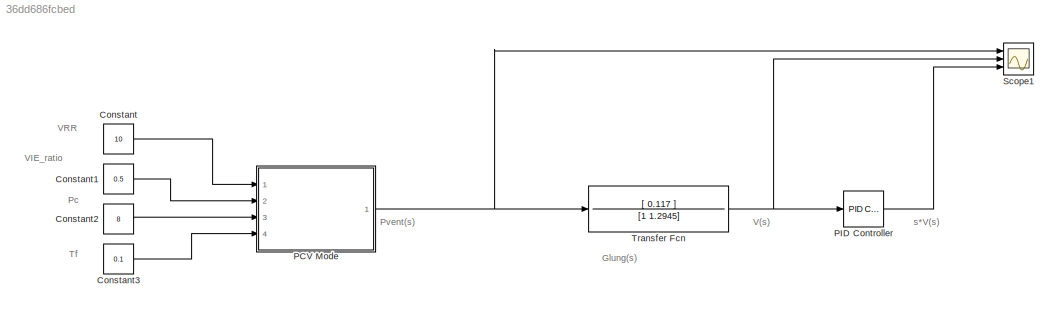
MODEL slx_36dd686fcbed
KIND model
CONFIG AbsTol = auto
CONFIG EnableMultiTasking = on
CONFIG FixedStep = 0.01
CONFIG MaxStep = auto
CONFIG MinStep = auto
CONFIG RelTol = 1e-3
CONFIG SampleTimeConstraint = Unconstrained
CONFIG Solver = ode1
CONFIG SolverName = ode1
CONFIG StartTime = 0.0
CONFIG StopTime = 60
BLOCK [Constant] Constant
  Value = 10
  VectorParams1D = off
BLOCK [Constant] Constant1
  Value = 0.5
BLOCK [Constant] Constant2
  Value = 8
BLOCK [Constant] Constant3
  Value = 0.1
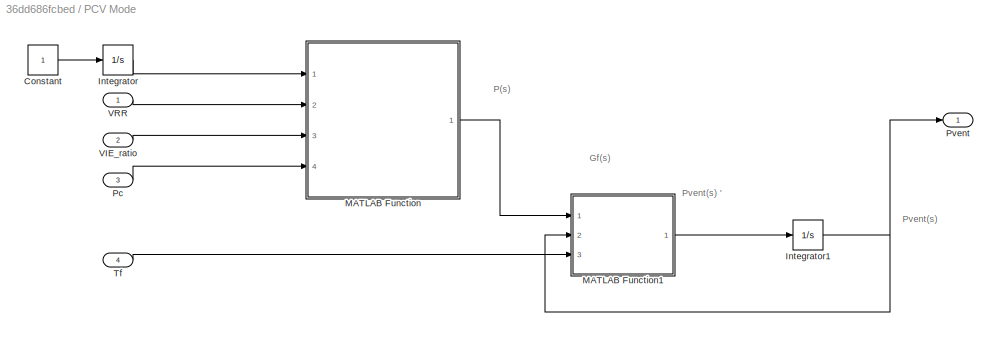
BLOCK [SubSystem] PCV Mode
  Ports = [4, 1]
  RequestExecContextInheritance = off
BLOCK [Constant] PCV Mode/Constant
BLOCK [Integrator] PCV Mode/Integrator
  Ports = [1, 1]
BLOCK [Integrator] PCV Mode/Integrator1
  Ports = [1, 1]
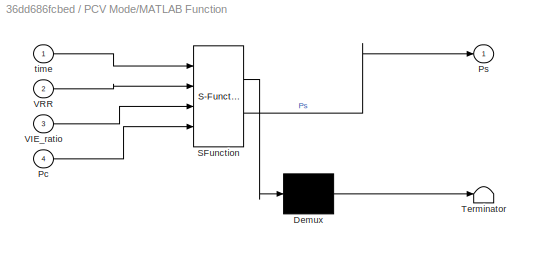
BLOCK [SubSystem] PCV Mode/MATLAB Function
  ErrorFcn = Stateflow.Translate.translate
  PermitHierarchicalResolution = ExplicitOnly
  Ports = [4, 1]
  RequestExecContextInheritance = off
  SFBlockType = MATLAB Function
  TreatAsAtomicUnit = on
BLOCK [Demux] PCV Mode/MATLAB Function/ Demux 
  DisplayOption = bar
  Outputs = 1
  Ports = [1, 1]
BLOCK [S-Function] PCV Mode/MATLAB Function/ SFunction 
  EnableBusSupport = on
  FunctionName = sf_sfun
  PortCounts = [4 2]
  Ports = [4, 2]
  SFcnIsStateOwnerBlock = off
  SFunctionDeploymentMode = off
  Tag = Stateflow S-Function Final_Q2_E_for_Pc_8_end 2
BLOCK [Terminator] PCV Mode/MATLAB Function/ Terminator 
BLOCK [Inport] PCV Mode/MATLAB Function/Pc
  IconDisplay = Port number
  Port = 4
BLOCK [Outport] PCV Mode/MATLAB Function/Ps
  IconDisplay = Port number
  VectorParamsAs1DForOutWhenUnconnected = on
BLOCK [Inport] PCV Mode/MATLAB Function/VIE_ratio
  IconDisplay = Port number
  Port = 3
BLOCK [Inport] PCV Mode/MATLAB Function/VRR
  IconDisplay = Port number
  Port = 2
BLOCK [Inport] PCV Mode/MATLAB Function/time
  IconDisplay = Port number
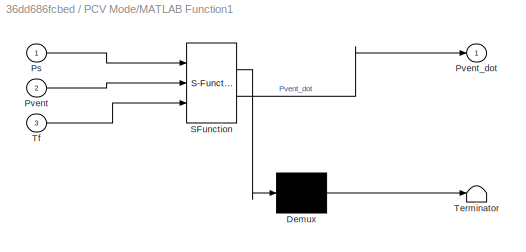
BLOCK [SubSystem] PCV Mode/MATLAB Function1
  ErrorFcn = Stateflow.Translate.translate
  PermitHierarchicalResolution = ExplicitOnly
  Ports = [3, 1]
  RequestExecContextInheritance = off
  SFBlockType = MATLAB Function
  TreatAsAtomicUnit = on
BLOCK [Demux] PCV Mode/MATLAB Function1/ Demux 
  DisplayOption = bar
  Outputs = 1
  Ports = [1, 1]
BLOCK [S-Function] PCV Mode/MATLAB Function1/ SFunction 
  EnableBusSupport = on
  FunctionName = sf_sfun
  PortCounts = [3 2]
  Ports = [3, 2]
  SFcnIsStateOwnerBlock = off
  SFunctionDeploymentMode = off
  Tag = Stateflow S-Function Final_Q2_E_for_Pc_8_end 4
BLOCK [Terminator] PCV Mode/MATLAB Function1/ Terminator 
BLOCK [Inport] PCV Mode/MATLAB Function1/Ps
  IconDisplay = Port number
BLOCK [Inport] PCV Mode/MATLAB Function1/Pvent
  IconDisplay = Port number
  Port = 2
BLOCK [Outport] PCV Mode/MATLAB Function1/Pvent_dot
  IconDisplay = Port number
  VectorParamsAs1DForOutWhenUnconnected = on
BLOCK [Inport] PCV Mode/MATLAB Function1/Tf
  IconDisplay = Port number
  Port = 3
BLOCK [Inport] PCV Mode/Pc
  IconDisplay = Port number
  Port = 3
BLOCK [Outport] PCV Mode/Pvent
  IconDisplay = Port number
BLOCK [Inport] PCV Mode/Tf
  IconDisplay = Port number
  Port = 4
BLOCK [Inport] PCV Mode/VIE_ratio
  IconDisplay = Port number
  Port = 2
BLOCK [Inport] PCV Mode/VRR
  IconDisplay = Port number
BLOCK [Reference] PID Controller  REF=simulink/Continuous/PID Controller
  Ports = [1, 1]
  SourceBlock = simulink/Continuous/PID Controller
  SourceProductBaseCode = SL
  SourceType = PID 1dof
BLOCK [Scope] Scope1
  Floating = off
  NumInputPorts = 3
  Ports = [3]
  ScopeSpecificationString = Simulink.scopes.TimeScopeBlockCfg('CurrentConfiguration', extmgr.ConfigurationSet(extmgr.Configuration('Core','General UI',true,'FigureColor',[1 1 1]),extmgr.Configuration('Core','Source UI',true),extmgr.Configuration('Sources','WiredSimulink',true,'DataLoggingVariableName','ScopeData1'),extmgr.Configuration('Visuals','Time Domain',true,'SerializedDisplays',{struct('MinYLimReal','-2.33527','MaxYLi...<+3171ch>
BLOCK [TransferFcn] Transfer Fcn
  Denominator = [1 1.2945]
  Numerator = [ 0.117 ]
ANNOTATION (root): Glung(s)
ANNOTATION (root): Pvent(s)
ANNOTATION (root): V(s)
ANNOTATION (root): Tf
ANNOTATION (root): Pc
ANNOTATION (root): VIE_ratio
ANNOTATION (root): VRR
ANNOTATION (root): s*V(s)
ANNOTATION PCV Mode: Gf(s)
ANNOTATION PCV Mode: P(s)
ANNOTATION PCV Mode: Pvent(s) '
ANNOTATION PCV Mode: Pvent(s)
LINE Constant1:1 -> PCV Mode:2
LINE Constant2:1 -> PCV Mode:3
LINE Constant3:1 -> PCV Mode:4
LINE Constant:1 -> PCV Mode:1
LINE PCV Mode/Constant:1 -> PCV Mode/Integrator:1
NET PCV Mode/Integrator1:1 -> PCV Mode/MATLAB Function1:2, PCV Mode/Pvent:1
LINE PCV Mode/Integrator:1 -> PCV Mode/MATLAB Function:1
LINE PCV Mode/MATLAB Function1:1 -> PCV Mode/Integrator1:1
LINE PCV Mode/MATLAB Function:1 -> PCV Mode/MATLAB Function1:1
LINE PCV Mode/Pc:1 -> PCV Mode/MATLAB Function:4
LINE PCV Mode/Tf:1 -> PCV Mode/MATLAB Function1:3
LINE PCV Mode/VIE_ratio:1 -> PCV Mode/MATLAB Function:3
LINE PCV Mode/VRR:1 -> PCV Mode/MATLAB Function:2
NET PCV Mode:1 -> Scope1:1, Transfer Fcn:1
LINE PID Controller:1 -> Scope1:3
NET Transfer Fcn:1 -> PID Controller:1, Scope1:2
note: NET lines group one-source signal fan-out (src -> all destinations, sorted); 1:1 wires keep LINE
CHART PCV Mode/MATLAB Function states=1 transitions=1
  STATE_LABEL 'eML_blk_kernel()'
  STATE_LABEL 'SCRIPT:\nfunction Ps = P_producer(time,VRR,VIE_ratio ,Pc)\n\nstop_time = 60; % stop time is given as 60 seconds\n\n% Ti - Inspiratory Time (s)     Te - Expiratory Time (s)\n% VRR - Ventilator Respiratory Rate (breaths/min) is 10.\n% VIE_ratio ventilator inspiratory/expiratory rate is 0.5.\n% \n% There are 2 two equations.\n%\n%   60\n% ------ = Ti + Te     and     Ti = Te x VIE\n%   VRR\n% \n% in matrix form;\n% ...<+485ch>'
CHART PCV Mode/MATLAB Function1 states=1 transitions=1
  STATE_LABEL 'eML_blk_kernel()'
  STATE_LABEL "SCRIPT:\nfunction Pvent_dot = filter(Ps,Pvent,Tf)\n% Gf(s) = Pvent/ Ps = 1/( Tf*s + 1)\n% Pvent* (Tf*s + 1) = Ps\n% Pvent*Tf*s + Pvent = Ps\n%\n% In time domain \n% Pvent(t)' * Tf + Pvent(t) = P(t)\n% Pvent(t)' = (P(t)  - Pvent(t))/ Tf\nPvent_dot = (Ps  - Pvent)/ Tf;\n\nend\n"
